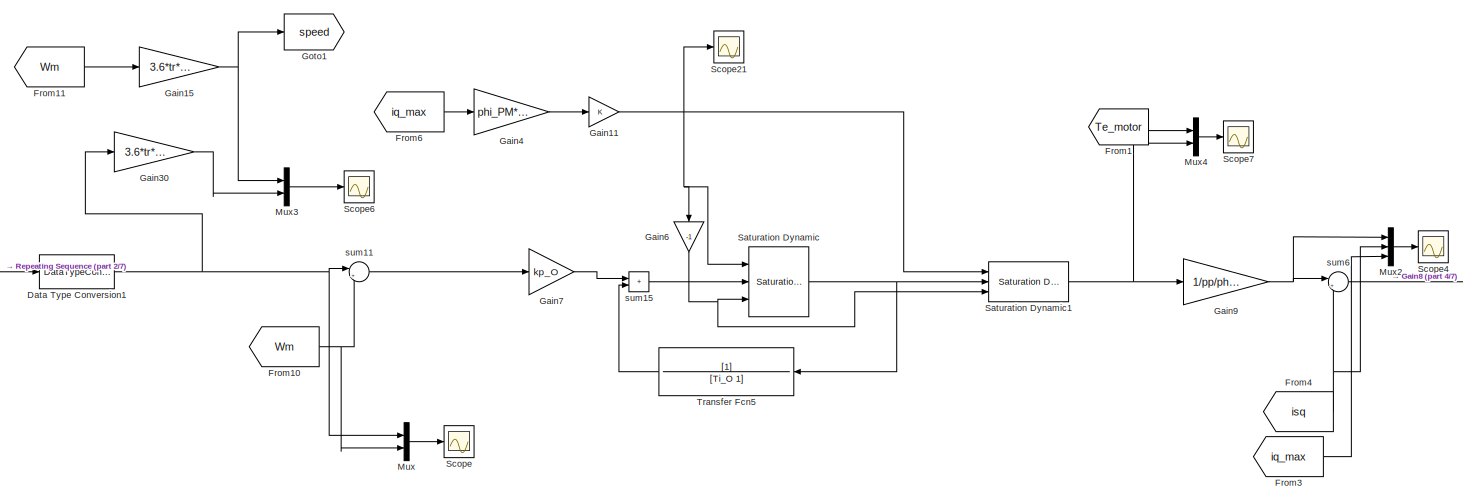
[diagram: root canvas - part 1/7, top left region]
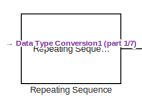
[diagram: root canvas - part 2/7, top left region]
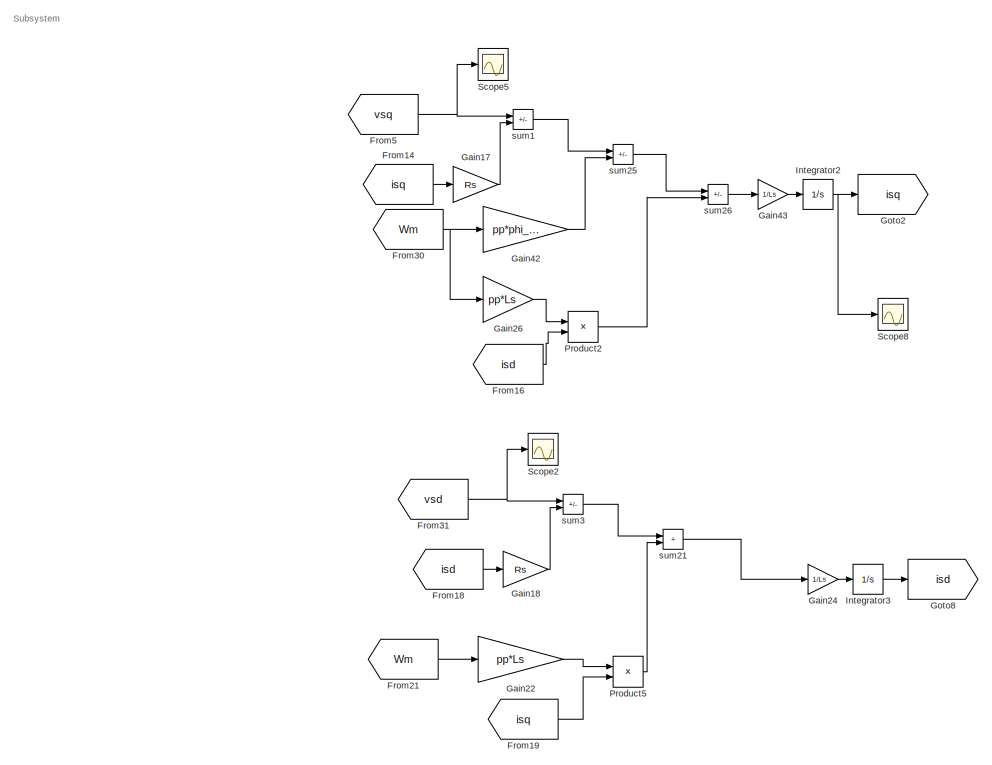
[diagram: root canvas - part 3/7, middle right region]
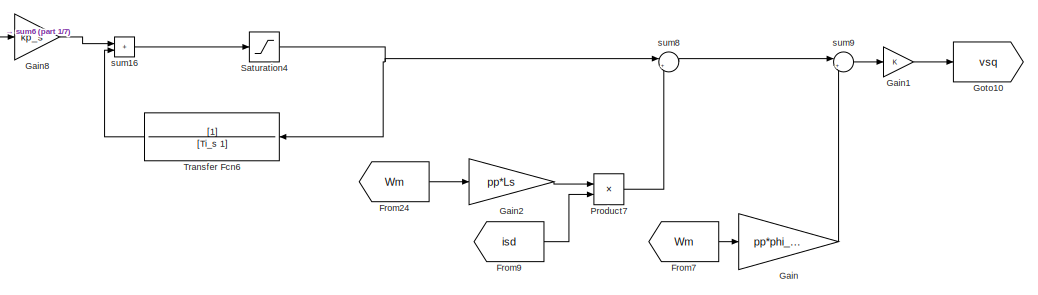
[diagram: root canvas - part 4/7, top center region]
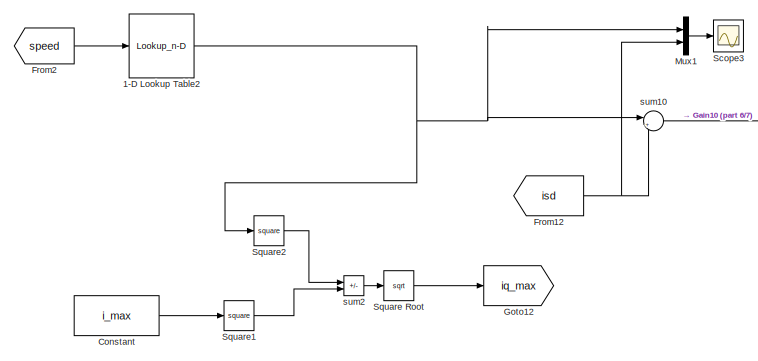
[diagram: root canvas - part 5/7, middle left region]
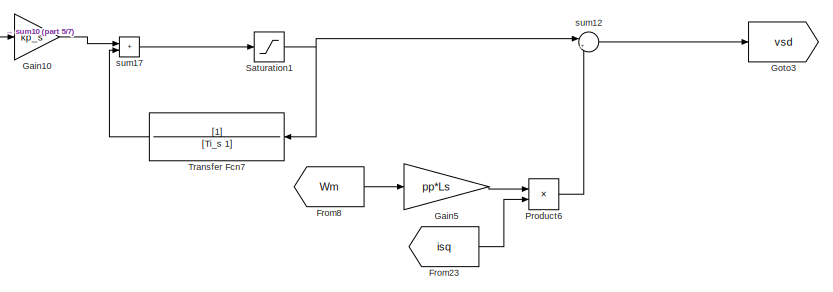
[diagram: root canvas - part 6/7, middle left region]
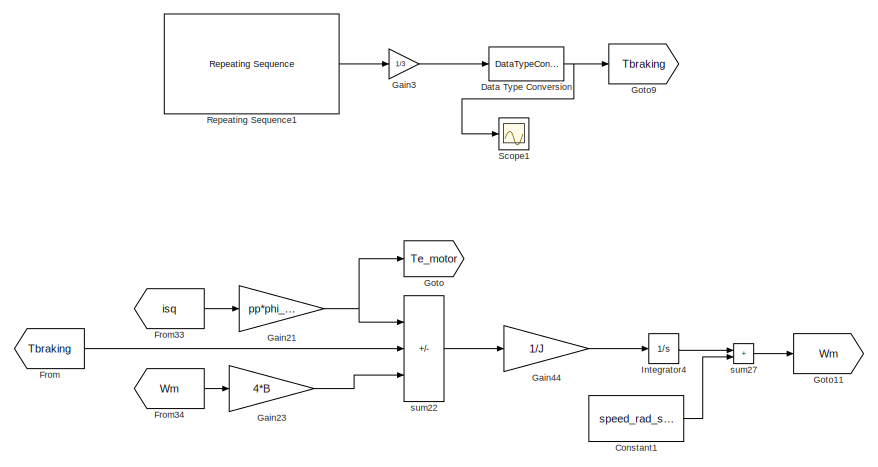
[diagram: root canvas - part 7/7, bottom right region]
MODEL slx_aec4e67c3d77
KIND model
CONFIG AbsTol = auto
CONFIG EnableMultiTasking = off
CONFIG FixedStep = auto
CONFIG MaxStep = auto
CONFIG MinStep = auto
CONFIG RelTol = auto
CONFIG SampleTimeConstraint = Unconstrained
CONFIG SolverName = ode23t
CONFIG StartTime = 0.0
CONFIG StopTime = 100
BLOCK [Lookup_n-D] 1-D Lookup Table2
  BreakpointsForDimension1 = speed_ref
  InputPortMap = u0
  InternalRulePriority = Speed
  NumberOfTableDimensions = 1
  Ports = [1, 1]
  RndMeth = Simplest
  Table = id_ref
BLOCK [Constant] Constant
  Value = i_max
BLOCK [Constant] Constant1
  Value = speed_rad_sim(1)
BLOCK [DataTypeConversion] Data Type Conversion
  OutDataTypeStr = double
  RndMeth = Floor
  SaturateOnIntegerOverflow = off
BLOCK [DataTypeConversion] Data Type Conversion1
  OutDataTypeStr = double
  RndMeth = Floor
  SaturateOnIntegerOverflow = off
BLOCK [From] From
  GotoTag = Tbraking
BLOCK [From] From1
  GotoTag = Te_motor
BLOCK [From] From10
  GotoTag = Wm
BLOCK [From] From11
  GotoTag = Wm
BLOCK [From] From12
  GotoTag = isd
BLOCK [From] From14
  GotoTag = isq
BLOCK [From] From16
  GotoTag = isd
BLOCK [From] From18
  GotoTag = isd
BLOCK [From] From19
  GotoTag = isq
BLOCK [From] From2
  GotoTag = speed
BLOCK [From] From21
  GotoTag = Wm
BLOCK [From] From23
  GotoTag = isq
BLOCK [From] From24
  GotoTag = Wm
BLOCK [From] From3
  GotoTag = iq_max
BLOCK [From] From30
  GotoTag = Wm
BLOCK [From] From31
  GotoTag = vsd
BLOCK [From] From33
  GotoTag = isq
BLOCK [From] From34
  GotoTag = Wm
BLOCK [From] From4
  GotoTag = isq
BLOCK [From] From5
  GotoTag = vsq
BLOCK [From] From6
  GotoTag = iq_max
BLOCK [From] From7
  GotoTag = Wm
BLOCK [From] From8
  GotoTag = Wm
BLOCK [From] From9
  GotoTag = isd
BLOCK [Gain] Gain
  Gain = pp*phi_PM
BLOCK [Gain] Gain1
BLOCK [Gain] Gain10
  Gain = kp_s
BLOCK [Gain] Gain11
BLOCK [Gain] Gain15
  Gain = 3.6*tr*d/2
BLOCK [Gain] Gain17
  Gain = Rs
BLOCK [Gain] Gain18
  Gain = Rs
BLOCK [Gain] Gain2
  Gain = pp*Ls
BLOCK [Gain] Gain21
  Gain = pp*phi_PM
BLOCK [Gain] Gain22
  Gain = pp*Ls
BLOCK [Gain] Gain23
  Gain = 4*B
BLOCK [Gain] Gain24
  Gain = 1/Ls
BLOCK [Gain] Gain26
  Gain = pp*Ls
BLOCK [Gain] Gain3
  Gain = 1/3
BLOCK [Gain] Gain30
  Gain = 3.6*tr*d/2
BLOCK [Gain] Gain4
  Gain = phi_PM*pp
BLOCK [Gain] Gain42
  Gain = pp*phi_PM
BLOCK [Gain] Gain43
  Gain = 1/Ls
BLOCK [Gain] Gain44
  Gain = 1/J
BLOCK [Gain] Gain5
  Gain = pp*Ls
BLOCK [Gain] Gain6
  Gain = -1
  NameLocation = left
BLOCK [Gain] Gain7
  Gain = kp_O
BLOCK [Gain] Gain8
  Gain = kp_s
BLOCK [Gain] Gain9
  Gain = 1/pp/phi_PM
BLOCK [Goto] Goto
  GotoTag = Te_motor
BLOCK [Goto] Goto1
  GotoTag = speed
BLOCK [Goto] Goto10
  GotoTag = vsq
BLOCK [Goto] Goto11
  GotoTag = Wm
BLOCK [Goto] Goto12
  GotoTag = iq_max
BLOCK [Goto] Goto2
  GotoTag = isq
BLOCK [Goto] Goto3
  GotoTag = vsd
BLOCK [Goto] Goto8
  GotoTag = isd
BLOCK [Goto] Goto9
  GotoTag = Tbraking
BLOCK [Integrator] Integrator2
  Ports = [1, 1]
BLOCK [Integrator] Integrator3
  Ports = [1, 1]
BLOCK [Integrator] Integrator4
  Ports = [1, 1]
BLOCK [Mux] Mux
  DisplayOption = bar
  Inputs = 2
  Ports = [2, 1]
BLOCK [Mux] Mux1
  DisplayOption = bar
  Inputs = 2
  Ports = [2, 1]
BLOCK [Mux] Mux2
  DisplayOption = bar
  Inputs = 3
  Ports = [3, 1]
BLOCK [Mux] Mux3
  DisplayOption = bar
  Inputs = 2
  Ports = [2, 1]
BLOCK [Mux] Mux4
  DisplayOption = bar
  Inputs = 2
  Ports = [2, 1]
BLOCK [Product] Product2
  Ports = [2, 1]
BLOCK [Product] Product5
  Ports = [2, 1]
BLOCK [Product] Product6
  Ports = [2, 1]
BLOCK [Product] Product7
  Ports = [2, 1]
BLOCK [Reference] Repeating Sequence  REF=simulink/Sources/Repeating
Sequence
  Ports = [0, 1]
  SourceBlock = simulink/Sources/Repeating\nSequence
  SourceProductBaseCode = SL
  SourceType = Repeating table
BLOCK [Reference] Repeating Sequence1  REF=simulink/Sources/Repeating
Sequence
  Ports = [0, 1]
  SourceBlock = simulink/Sources/Repeating\nSequence
  SourceProductBaseCode = SL
  SourceType = Repeating table
BLOCK [Reference] Saturation Dynamic  REF=simulink/Discontinuities/Saturation
Dynamic
  Ports = [3, 1]
  SourceBlock = simulink/Discontinuities/Saturation\nDynamic
  SourceProductBaseCode = SL
  SourceType = Saturation Dynamic
BLOCK [Reference] Saturation Dynamic1  REF=simulink/Discontinuities/Saturation
Dynamic
  Ports = [3, 1]
  SourceBlock = simulink/Discontinuities/Saturation\nDynamic
  SourceProductBaseCode = SL
  SourceType = Saturation Dynamic
BLOCK [Saturate] Saturation1
  LowerLimit = -V_batt
  UpperLimit = V_batt
BLOCK [Saturate] Saturation4
  LowerLimit = -V_batt
  UpperLimit = V_batt
BLOCK [Scope] Scope
  Floating = off
  NumInputPorts = 1
  Ports = [1]
  ScopeSpecificationString = Simulink.scopes.TimeScopeBlockCfg('CurrentConfiguration', extmgr.ConfigurationSet(extmgr.Configuration('Core','General UI',true),extmgr.Configuration('Core','Source UI',true),extmgr.Configuration('Sources','WiredSimulink',true),extmgr.Configuration('Visuals','Time Domain',true,'SerializedDisplays',{struct('MinYLimReal','-107.01657','MaxYLimReal','418.61012','YLabelReal','','MinYLimMag',' 0.00000',...<+1450ch>
BLOCK [Scope] Scope1
  Floating = off
  NumInputPorts = 1
  Ports = [1]
  ScopeSpecificationString = Simulink.scopes.TimeScopeBlockCfg('CurrentConfiguration', extmgr.ConfigurationSet(extmgr.Configuration('Core','General UI',true),extmgr.Configuration('Core','Source UI',true),extmgr.Configuration('Sources','WiredSimulink',true,'DataLoggingVariableName','ScopeData2'),extmgr.Configuration('Visuals','Time Domain',true,'SerializedDisplays',{struct('MinYLimReal','-348.17836','MaxYLimReal','38.68648','Y...<+1416ch>
BLOCK [Scope] Scope2
  Floating = off
  NumInputPorts = 1
  Ports = [1]
  ScopeSpecificationString = Simulink.scopes.TimeScopeBlockCfg('CurrentConfiguration', extmgr.ConfigurationSet(extmgr.Configuration('Core','General UI',true),extmgr.Configuration('Core','Source UI',true),extmgr.Configuration('Sources','WiredSimulink',true,'DataLoggingVariableName','ScopeData1'),extmgr.Configuration('Visuals','Time Domain',true,'SerializedDisplays',{struct('MinYLimReal','-2409.24263','MaxYLimReal','2424.56285'...<+1588ch>
BLOCK [Scope] Scope21
  Floating = off
  NumInputPorts = 1
  Ports = [1]
  ScopeSpecificationString = Simulink.scopes.TimeScopeBlockCfg('CurrentConfiguration', extmgr.ConfigurationSet(extmgr.Configuration('Core','General UI',true),extmgr.Configuration('Core','Source UI',true),extmgr.Configuration('Sources','WiredSimulink',true,'DataLoggingVariableName','ScopeData22'),extmgr.Configuration('Visuals','Time Domain',true,'SerializedDisplays',{struct('MinYLimReal','242.21567','MaxYLimReal','499.40294','...<+1507ch>
BLOCK [Scope] Scope3
  Floating = off
  NumInputPorts = 1
  Ports = [1]
  ScopeSpecificationString = Simulink.scopes.TimeScopeBlockCfg('CurrentConfiguration', extmgr.ConfigurationSet(extmgr.Configuration('Core','General UI',true),extmgr.Configuration('Core','Source UI',true),extmgr.Configuration('Sources','WiredSimulink',true,'DataLoggingVariableName','ScopeData1'),extmgr.Configuration('Visuals','Time Domain',true,'SerializedDisplays',{struct('MinYLimReal','-476.91261','MaxYLimReal','53.00173','Y...<+1513ch>
BLOCK [Scope] Scope4
  Floating = off
  NumInputPorts = 1
  Ports = [1]
  ScopeSpecificationString = Simulink.scopes.TimeScopeBlockCfg('CurrentConfiguration', extmgr.ConfigurationSet(extmgr.Configuration('Core','General UI',true),extmgr.Configuration('Core','Source UI',true),extmgr.Configuration('Sources','WiredSimulink',true,'DataLoggingVariableName','ScopeData2'),extmgr.Configuration('Visuals','Time Domain',true,'SerializedDisplays',{struct('MinYLimReal','-571.74242','MaxYLimReal','591.24967','...<+1556ch>
BLOCK [Scope] Scope5
  Floating = off
  NumInputPorts = 1
  Ports = [1]
  ScopeSpecificationString = Simulink.scopes.TimeScopeBlockCfg('CurrentConfiguration', extmgr.ConfigurationSet(extmgr.Configuration('Core','General UI',true),extmgr.Configuration('Core','Source UI',true),extmgr.Configuration('Sources','WiredSimulink',true,'DataLoggingVariableName','ScopeData5'),extmgr.Configuration('Visuals','Time Domain',true,'SerializedDisplays',{struct('MinYLimReal','-2409.24263','MaxYLimReal','2424.56285'...<+1562ch>
BLOCK [Scope] Scope6
  Floating = off
  NumInputPorts = 1
  Ports = [1]
  ScopeSpecificationString = Simulink.scopes.TimeScopeBlockCfg('CurrentConfiguration', extmgr.ConfigurationSet(extmgr.Configuration('Core','General UI',true),extmgr.Configuration('Core','Source UI',true),extmgr.Configuration('Sources','WiredSimulink',true,'DataLoggingVariableName','ScopeData6'),extmgr.Configuration('Visuals','Time Domain',true,'SerializedDisplays',{struct('MinYLimReal','30.8238','MaxYLimReal','142.94309','YLa...<+1550ch>
BLOCK [Scope] Scope7
  Floating = off
  NumInputPorts = 1
  Ports = [1]
  ScopeSpecificationString = Simulink.scopes.TimeScopeBlockCfg('CurrentConfiguration', extmgr.ConfigurationSet(extmgr.Configuration('Core','General UI',true),extmgr.Configuration('Core','Source UI',true),extmgr.Configuration('Sources','WiredSimulink',true,'DataLoggingVariableName','ScopeData3'),extmgr.Configuration('Visuals','Time Domain',true,'SerializedDisplays',{struct('MinYLimReal','-571.74242','MaxYLimReal','591.24967','...<+1539ch>
BLOCK [Scope] Scope8
  Floating = off
  NumInputPorts = 1
  Ports = [1]
  ScopeSpecificationString = Simulink.scopes.TimeScopeBlockCfg('CurrentConfiguration', extmgr.ConfigurationSet(extmgr.Configuration('Core','General UI',true),extmgr.Configuration('Core','Source UI',true),extmgr.Configuration('Sources','WiredSimulink',true,'DataLoggingVariableName','ScopeData4'),extmgr.Configuration('Visuals','Time Domain',true,'SerializedDisplays',{struct('MinYLimReal','-227.74442','MaxYLimReal','234.79277','...<+1560ch>
BLOCK [Sqrt] Square Root
BLOCK [Math] Square1
  Operator = square
  Ports = [1, 1]
BLOCK [Math] Square2
  Operator = square
  Ports = [1, 1]
BLOCK [TransferFcn] Transfer Fcn5
  Denominator = [Ti_O 1]
BLOCK [TransferFcn] Transfer Fcn6
  Denominator = [Ti_s 1]
BLOCK [TransferFcn] Transfer Fcn7
  Denominator = [Ti_s 1]
BLOCK [Sum] sum1
  IconShape = rectangular
  Inputs = +-
  Ports = [2, 1]
BLOCK [Sum] sum10
  Inputs = |+-
  Ports = [2, 1]
BLOCK [Sum] sum11
  Inputs = |+-
  Ports = [2, 1]
BLOCK [Sum] sum12
  Inputs = |+-
  Ports = [2, 1]
BLOCK [Sum] sum15
  IconShape = rectangular
  Ports = [2, 1]
BLOCK [Sum] sum16
  IconShape = rectangular
  Ports = [2, 1]
BLOCK [Sum] sum17
  IconShape = rectangular
  Ports = [2, 1]
BLOCK [Sum] sum2
  IconShape = rectangular
  Inputs = -+
  Ports = [2, 1]
BLOCK [Sum] sum21
  IconShape = rectangular
  Ports = [2, 1]
BLOCK [Sum] sum22
  IconShape = rectangular
  Inputs = ++-
  Ports = [3, 1]
BLOCK [Sum] sum25
  IconShape = rectangular
  Inputs = +-
  Ports = [2, 1]
BLOCK [Sum] sum26
  IconShape = rectangular
  Inputs = +-
  Ports = [2, 1]
BLOCK [Sum] sum27
  IconShape = rectangular
  Ports = [2, 1]
BLOCK [Sum] sum3
  IconShape = rectangular
  Inputs = +-
  Ports = [2, 1]
BLOCK [Sum] sum6
  Inputs = |+-
  Ports = [2, 1]
BLOCK [Sum] sum8
  Inputs = |++
  Ports = [2, 1]
BLOCK [Sum] sum9
  Inputs = |++
  Ports = [2, 1]
ANNOTATION (root): Subsystem
NET 1-D Lookup Table2:1 -> Mux1:1, Square2:1, sum10:1
LINE Constant1:1 -> sum27:2
LINE Constant:1 -> Square1:1
NET Data Type Conversion1:1 -> Gain30:1, Mux:1, sum11:1
NET Data Type Conversion:1 -> Goto9:1, Scope1:1
NET From10:1 -> Mux:2, sum11:2
LINE From11:1 -> Gain15:1
NET From12:1 -> Mux1:2, sum10:2
LINE From14:1 -> Gain17:1
LINE From16:1 -> Product2:2
LINE From18:1 -> Gain18:1
LINE From19:1 -> Product5:2
LINE From1:1 -> Mux4:1
LINE From21:1 -> Gain22:1
LINE From23:1 -> Product6:2
LINE From24:1 -> Gain2:1
LINE From2:1 -> 1-D Lookup Table2:1
NET From30:1 -> Gain26:1, Gain42:1
NET From31:1 -> Scope2:1, sum3:1
LINE From33:1 -> Gain21:1
LINE From34:1 -> Gain23:1
LINE From3:1 -> Mux2:3
NET From4:1 -> Mux2:2, sum6:2
NET From5:1 -> Scope5:1, sum1:1
LINE From6:1 -> Gain4:1
LINE From7:1 -> Gain:1
LINE From8:1 -> Gain5:1
LINE From9:1 -> Product7:2
LINE From:1 -> sum22:2
LINE Gain10:1 -> sum17:1
NET Gain11:1 -> Gain6:1, Saturation Dynamic1:1, Saturation Dynamic:1, Scope21:1
NET Gain15:1 -> Goto1:1, Mux3:1
LINE Gain17:1 -> sum1:2
LINE Gain18:1 -> sum3:2
LINE Gain1:1 -> Goto10:1
NET Gain21:1 -> Goto:1, sum22:1
LINE Gain22:1 -> Product5:1
LINE Gain23:1 -> sum22:3
LINE Gain24:1 -> Integrator3:1
LINE Gain26:1 -> Product2:1
LINE Gain2:1 -> Product7:1
LINE Gain30:1 -> Mux3:2
LINE Gain3:1 -> Data Type Conversion:1
LINE Gain42:1 -> sum25:2
LINE Gain43:1 -> Integrator2:1
LINE Gain44:1 -> Integrator4:1
LINE Gain4:1 -> Gain11:1
LINE Gain5:1 -> Product6:1
NET Gain6:1 -> Saturation Dynamic1:3, Saturation Dynamic:3
LINE Gain7:1 -> sum15:1
LINE Gain8:1 -> sum16:1
NET Gain9:1 -> Mux2:1, sum6:1
LINE Gain:1 -> sum9:2
NET Integrator2:1 -> Goto2:1, Scope8:1
LINE Integrator3:1 -> Goto8:1
LINE Integrator4:1 -> sum27:1
LINE Mux1:1 -> Scope3:1
LINE Mux2:1 -> Scope4:1
LINE Mux3:1 -> Scope6:1
LINE Mux4:1 -> Scope7:1
LINE Mux:1 -> Scope:1
LINE Product2:1 -> sum26:2
LINE Product5:1 -> sum21:2
LINE Product6:1 -> sum12:2
LINE Product7:1 -> sum8:2
LINE Repeating Sequence1:1 -> Gain3:1
LINE Repeating Sequence:1 -> Data Type Conversion1:1
NET Saturation Dynamic1:1 -> Gain9:1, Mux4:2
NET Saturation Dynamic:1 -> Saturation Dynamic1:2, Transfer Fcn5:1
NET Saturation1:1 -> Transfer Fcn7:1, sum12:1
NET Saturation4:1 -> Transfer Fcn6:1, sum8:1
LINE Square Root:1 -> Goto12:1
LINE Square1:1 -> sum2:2
LINE Square2:1 -> sum2:1
LINE Transfer Fcn5:1 -> sum15:2
LINE Transfer Fcn6:1 -> sum16:2
LINE Transfer Fcn7:1 -> sum17:2
LINE sum10:1 -> Gain10:1
LINE sum11:1 -> Gain7:1
LINE sum12:1 -> Goto3:1
LINE sum15:1 -> Saturation Dynamic:2
LINE sum16:1 -> Saturation4:1
LINE sum17:1 -> Saturation1:1
LINE sum1:1 -> sum25:1
LINE sum21:1 -> Gain24:1
LINE sum22:1 -> Gain44:1
LINE sum25:1 -> sum26:1
LINE sum26:1 -> Gain43:1
LINE sum27:1 -> Goto11:1
LINE sum2:1 -> Square Root:1
LINE sum3:1 -> sum21:1
LINE sum6:1 -> Gain8:1
LINE sum8:1 -> sum9:1
LINE sum9:1 -> Gain1:1
note: NET lines group one-source signal fan-out (src -> all destinations, sorted); 1:1 wires keep LINE
